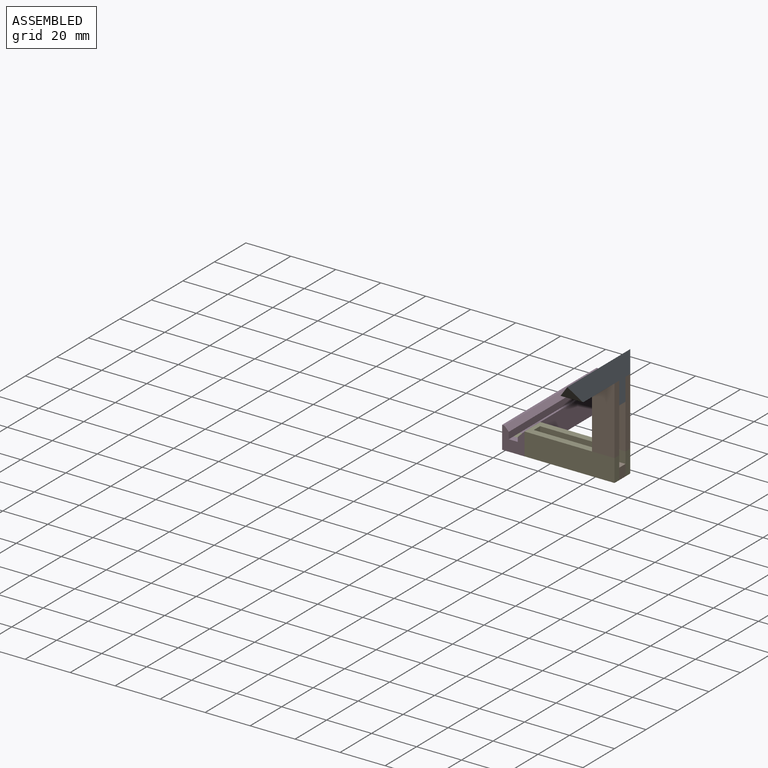
[diagram: assembled view]
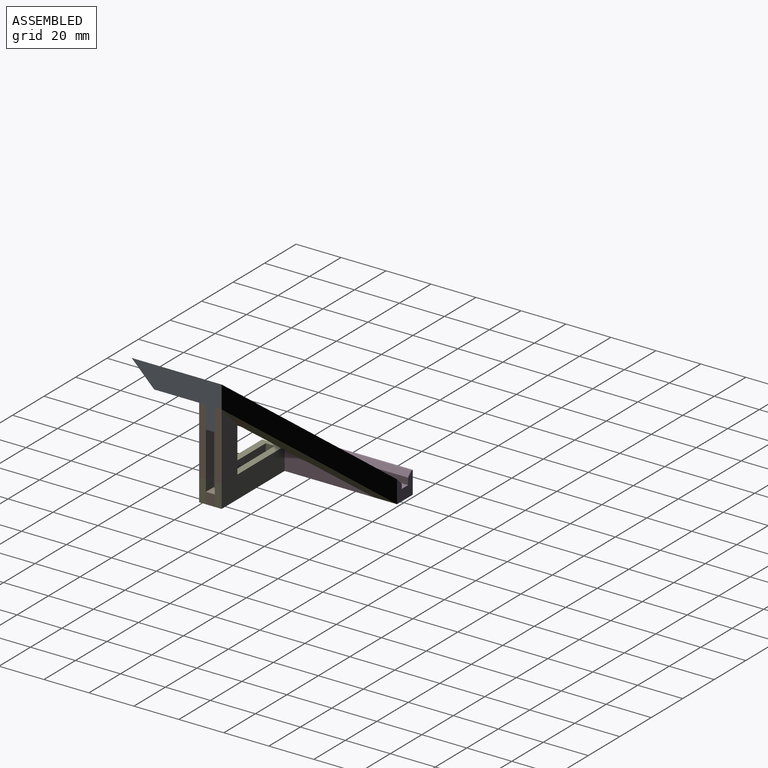
[diagram: assembled view, second angle]
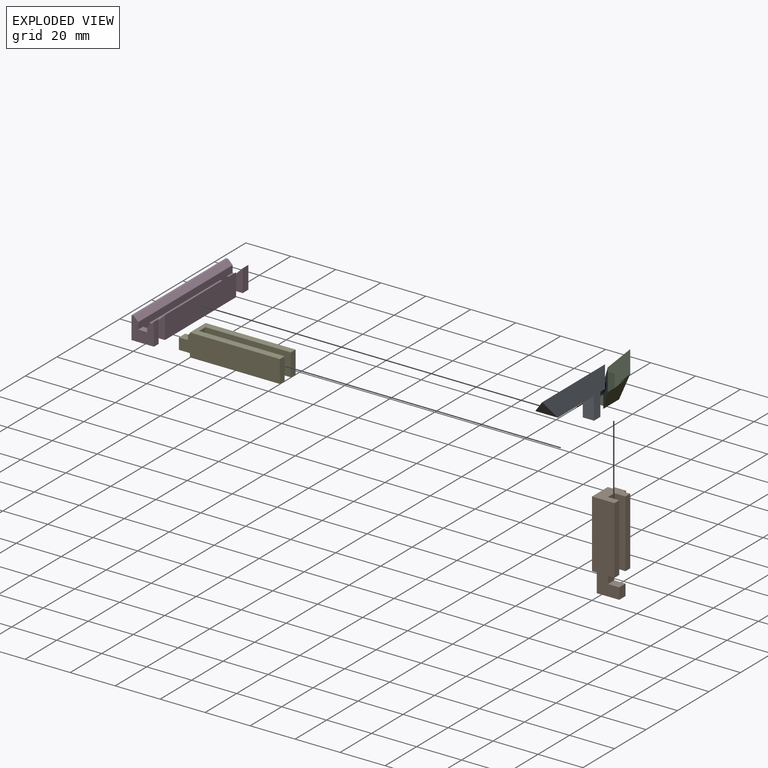
[diagram: exploded view]
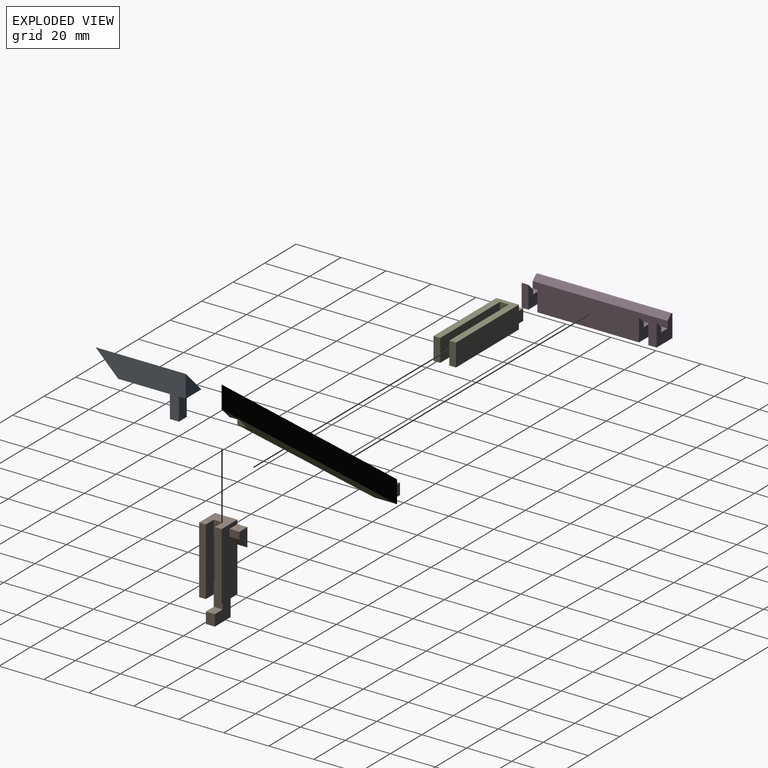
[diagram: exploded view, second angle]
ASSEMBLY  parts=5 mates=5
PART A: 94 faces, bbox 10x40x20 mm
  f0: plane 30x10mm, normal (0,0,-1), area 280mm2, adj f1,f2,f3,f69,f90,f91,f92
  f1: plane 40x10mm, normal (-0.71,0,0.71), area 386.4mm2, adj f0,f2,f3,f4,f5,f7,f8,f9
  f2: plane 40x20mm, normal (1,0,0), area 390mm2, adj f0,f1,f3,f69,f90,f92,f93
  f3: plane 10x10mm, normal (0,-0.71,-0.71), area 70.7mm2, adj f0,f1,f2
  f4: plane 3.02x1.41mm, normal (-0.71,0,-0.71), area 6mm2, adj f1,f6,f7,f71
  f5: plane 3.02x1.41mm, normal (0.71,0,0.71), area 6mm2, adj f1,f6,f11,f72
  f6: plane 5.15x5.15mm, normal (-0.71,0,0.71), area 13.6mm2, adj f4,f5,f7,f8,f9,f10,f11,f70
  f7: plane 2.04x2.04mm, normal (0,1,0), area 1.8mm2, adj f1,f4,f6,f8
  f8: plane 1.52x1.52mm, normal (0.69,0.19,0.69), area 1.6mm2, adj f1,f6,f7,f9
  f9: plane 5.11x5.11mm, normal (0,1,0), area 10.5mm2, adj f1,f6,f8,f10
  f10: plane 1.52x1.52mm, normal (-0.69,0.19,-0.69), area 1.6mm2, adj f1,f6,f9,f11
  f11: plane 2.03x2.03mm, normal (0,1,0), area 1.8mm2, adj f1,f5,f6,f10
  f12: plane 1.52x1.52mm, normal (0.69,-0.19,0.69), area 1.6mm2, adj f1,f13,f23,f24
  f13: plane 2.04x2.04mm, normal (0,-1,0), area 1.8mm2, adj f1,f12,f14,f24
  f14: plane 3.02x1.41mm, normal (-0.71,0,-0.71), area 6mm2, adj f1,f13,f15,f24
  f15: plane 2.04x2.04mm, normal (0,1,0), area 1.8mm2, adj f1,f14,f16,f24
  f16: plane 1.52x1.52mm, normal (0.69,0.19,0.69), area 1.6mm2, adj f1,f15,f17,f24
  f17: plane 5.11x5.11mm, normal (0,1,0), area 10.5mm2, adj f1,f16,f18,f24
  f18: plane 1.52x1.52mm, normal (-0.69,0.19,-0.69), area 1.6mm2, adj f1,f17,f19,f24
  f19: plane 2.03x2.03mm, normal (0,1,0), area 1.8mm2, adj f1,f18,f20,f24
  f20: plane 3.02x1.41mm, normal (0.71,0,0.71), area 6mm2, adj f1,f19,f21,f24
  f21: plane 2.03x2.03mm, normal (0,-1,0), area 1.8mm2, adj f1,f20,f22,f24
  f22: plane 1.52x1.52mm, normal (-0.69,-0.19,-0.69), area 1.6mm2, adj f1,f21,f23,f24
  f23: plane 5.11x5.11mm, normal (0,-1,0), area 10.5mm2, adj f1,f12,f22,f24
  f24: plane 5.15x5.15mm, normal (-0.71,0,0.71), area 13.6mm2, adj f12,f13,f14,f15,f16,f17,f18,f19
  f25: plane 3.28x1.41mm, normal (-0.71,0,-0.71), area 6.6mm2, adj f1,f26,f44,f45
  f26: extruded ~2.2x2.02mm, area 4.9mm2, adj f1,f25,f27,f45
  f27: extruded ~2.96x2.96mm, area 4.8mm2, adj f1,f26,f28,f45
  f28: plane 2.27x2.27mm, normal (0,1,0), area 2.4mm2, adj f1,f27,f29,f45
  f29: extruded ~2.96x2.96mm, area 4.8mm2, adj f1,f28,f30,f45
  f30: extruded ~2.2x2.01mm, area 4.8mm2, adj f1,f29,f31,f45
  f31: plane 3.28x1.41mm, normal (0.71,0,0.71), area 6.6mm2, adj f1,f30,f32,f45
  f32: plane 2.03x2.03mm, normal (0,-1,0), area 1.8mm2, adj f1,f31,f33,f45
  f33: plane 1.52x1.52mm, normal (-0.69,-0.19,-0.69), area 1.6mm2, adj f1,f32,f34,f45
  f34: plane 5.11x5.11mm, normal (0,-1,0), area 10.5mm2, adj f1,f33,f35,f45
  f35: plane 1.52x1.52mm, normal (0.69,-0.19,0.69), area 1.6mm2, adj f1,f34,f44,f45
  f36: plane 1.41x1.41mm, normal (0.71,0,0.71), area 1.9mm2, adj f37,f43,f45,f46
  f37: plane 4.98x4.98mm, normal (0,1,0), area 10.1mm2, adj f36,f38,f45,f46
  f38: plane 1.41x1.41mm, normal (-0.71,0,-0.71), area 1.9mm2, adj f37,f39,f45,f46
  f39: extruded ~1.79x1.79mm, area 2.8mm2, adj f38,f40,f45,f46
  f40: extruded ~2.39x2.39mm, area 3mm2, adj f39,f41,f45,f46
  f41: plane 2.27x2.27mm, normal (0,-1,0), area 2.4mm2, adj f40,f42,f45,f46
  f42: extruded ~2.39x2.39mm, area 3mm2, adj f41,f43,f45,f46
  f43: extruded ~1.79x1.79mm, area 2.8mm2, adj f36,f42,f45,f46
  f44: plane 2.04x2.04mm, normal (0,-1,0), area 1.8mm2, adj f1,f25,f35,f45
  f45: plane 6.35x5.15mm, normal (-0.71,0,0.71), area 26.3mm2, adj f25,f26,f27,f28,f29,f30,f31,f32
  f46: plane 3.56x3.56mm, normal (-0.71,0,0.71), area 12.1mm2, adj f36,f37,f38,f39,f40,f41,f42,f43
  f47: plane 2.03x2.03mm, normal (0,-1,0), area 1.8mm2, adj f1,f48,f66,f67
  f48: plane 1.47x1.47mm, normal (-0.7,-0.14,-0.7), area 1.1mm2, adj f1,f47,f49,f67
  f49: plane 5.9x5.9mm, normal (-0.23,-0.94,-0.23), area 13.4mm2, adj f1,f48,f50,f67
  f50: plane 1.5x1.41mm, normal (-0.71,0,-0.71), area 3mm2, adj f1,f49,f51,f67
  f51: plane 5.9x5.9mm, normal (-0.23,0.94,-0.23), area 13.4mm2, adj f1,f50,f52,f67
  f52: plane 1.47x1.47mm, normal (-0.7,0.14,-0.7), area 1.1mm2, adj f1,f51,f53,f67
  f53: plane 2.03x2.03mm, normal (0,1,0), area 1.8mm2, adj f1,f52,f54,f67
  f54: plane 2.48x1.41mm, normal (0.71,0,0.71), area 5mm2, adj f1,f53,f55,f67
  f55: plane 2.03x2.03mm, normal (0,-1,0), area 1.8mm2, adj f1,f54,f56,f67
  f56: plane 1.48x1.48mm, normal (-0.7,-0.17,-0.7), area 1mm2, adj f1,f55,f57,f67
  f57: plane 2.12x2.12mm, normal (0.22,-0.95,0.22), area 2.1mm2, adj f1,f56,f58,f67
  f58: plane 2.36x1.41mm, normal (0.71,0,0.71), area 4.7mm2, adj f1,f57,f59,f67
  f59: plane 2.12x2.12mm, normal (0.22,0.95,0.22), area 2.1mm2, adj f1,f58,f60,f67
  f60: plane 1.48x1.48mm, normal (-0.7,0.18,-0.7), area 1mm2, adj f1,f59,f61,f67
  f61: plane 2.03x2.03mm, normal (0,1,0), area 1.8mm2, adj f1,f60,f66,f67
  f62: plane 3.23x3.23mm, normal (0.22,0.95,0.22), area 5.4mm2, adj f63,f65,f67,f68
  f63: plane 1.67x1.41mm, normal (-0.71,0,-0.71), area 3.3mm2, adj f62,f64,f67,f68
  f64: plane 3.23x3.23mm, normal (0.22,-0.95,0.22), area 5.4mm2, adj f63,f65,f67,f68
  f65: plane 1.41x1.41mm, normal (0.71,0,0.71), area 0.1mm2, adj f62,f64,f67,f68
  f66: plane 2.48x1.41mm, normal (0.71,0,0.71), area 5mm2, adj f1,f47,f61,f67
  f67: plane 6.96x5.15mm, normal (-0.71,0,0.71), area 23.2mm2, adj f47,f48,f49,f50,f51,f52,f53,f54
  f68: plane 1.82x1.82mm, normal (-0.71,0,0.71), area 2.2mm2, adj f62,f63,f64,f65
  f69: plane 10x10mm, normal (0,1,0), area 50mm2, adj f0,f1,f2
  f70: plane 1.52x1.52mm, normal (0.69,-0.19,0.69), area 1.6mm2, adj f1,f6,f71,f74
  f71: plane 2.04x2.04mm, normal (0,-1,0), area 1.8mm2, adj f1,f4,f6,f70
  f72: plane 2.03x2.03mm, normal (0,-1,0), area 1.8mm2, adj f1,f5,f6,f73
  f73: plane 1.52x1.52mm, normal (-0.69,-0.19,-0.69), area 1.6mm2, adj f1,f6,f72,f74
  f74: plane 5.11x5.11mm, normal (0,-1,0), area 10.5mm2, adj f1,f6,f70,f73
  f75: plane 5.48x1.41mm, normal (0.71,0,0.71), area 11mm2, adj f1,f76,f88,f89
  f76: plane 2.03x2.03mm, normal (0,-1,0), area 1.8mm2, adj f1,f75,f77,f89
  f77: plane 1.52x1.52mm, normal (-0.69,-0.19,-0.69), area 1.6mm2, adj f1,f76,f78,f89
  f78: plane 5.11x5.11mm, normal (0,-1,0), area 10.5mm2, adj f1,f77,f79,f89
  f79: plane 1.52x1.52mm, normal (0.69,-0.19,0.69), area 1.6mm2, adj f1,f78,f80,f89
  f80: plane 2.04x2.04mm, normal (0,-1,0), area 1.8mm2, adj f1,f79,f81,f89
  f81: plane 3.02x1.41mm, normal (-0.71,0,-0.71), area 6mm2, adj f1,f80,f82,f89
  f82: plane 2.04x2.04mm, normal (0,1,0), area 1.8mm2, adj f1,f81,f83,f89
  f83: plane 1.52x1.52mm, normal (0.69,0.19,0.69), area 1.6mm2, adj f1,f82,f84,f89
  f84: plane 5.05x5.05mm, normal (0,1,0), area 10.3mm2, adj f1,f83,f85,f89
  f85: plane 2.06x1.41mm, normal (-0.71,0,-0.71), area 4.1mm2, adj f1,f84,f86,f89
  f86: plane 2.06x2.06mm, normal (-0.05,-1,-0.05), area 1.8mm2, adj f1,f85,f87,f89
  f87: plane 1.41x1.41mm, normal (-0.71,0,-0.71), area 2.2mm2, adj f1,f86,f88,f89
  f88: plane 2.86x2.86mm, normal (0,1,0), area 4.1mm2, adj f1,f75,f87,f89
  f89: plane 5.48x5.15mm, normal (-0.71,0,0.71), area 17.6mm2, adj f75,f76,f77,f78,f79,f80,f81,f82
  f90: plane 10x5mm, normal (0,-1,0), area 50mm2, adj f0,f2,f91,f93
  f91: plane 10x4mm, normal (-1,0,0), area 40mm2, adj f0,f90,f92,f93
  f92: plane 10x5mm, normal (0,1,0), area 50mm2, adj f0,f2,f91,f93
  f93: plane 5x4mm, normal (0,0,-1), area 20mm2, adj f2,f90,f91,f92
PART B: 20 faces, bbox 10x14.5x40 mm
  f0: plane 8.19x5mm, normal (0,1,0), area 28.4mm2, adj f1,f3,f4,f19
  f1: plane 4.46x3.19mm, normal (1,0,0), area 14.2mm2, adj f0,f4,f18,f19
  f2: plane 10x10mm, normal (0,0,1), area 80mm2, adj f3,f12,f13,f14,f15,f16,f17,f18
  f3: plane 40x14.46mm, normal (-1,0,0), area 376.5mm2, adj f0,f2,f4,f6,f7,f8,f9,f11
  f4: plane 5x5mm, normal (0.71,0,-0.71), area 31.6mm2, adj f0,f1,f3,f18
  f5: plane 5x4mm, normal (1,0,0), area 20mm2, adj f6,f9,f10,f11
  f6: plane 10x4mm, normal (0,0,-1), area 40mm2, adj f3,f5,f9,f11
  f7: plane 10x3mm, normal (0,0,-1), area 30mm2, adj f3,f11,f15,f16,f17
  f8: plane 10x3mm, normal (0,0,-1), area 30mm2, adj f3,f9,f13,f14,f18
  f9: plane 10x10mm, normal (0,1,0), area 75mm2, adj f3,f5,f6,f8,f10,f12
  f10: plane 5x4mm, normal (0,0,1), area 20mm2, adj f5,f9,f11,f12
  f11: plane 10x10mm, normal (0,-1,0), area 75mm2, adj f3,f5,f6,f7,f10,f12
  f12: plane 35x4mm, normal (1,0,0), area 140mm2, adj f2,f9,f10,f11,f13,f17
  f13: plane 30x5mm, normal (0,-1,0), area 150mm2, adj f2,f8,f12,f14
  f14: plane 30x3mm, normal (1,0,0), area 90mm2, adj f2,f8,f13,f18
  f15: plane 30x10mm, normal (0,-1,0), area 300mm2, adj f2,f3,f7,f16
  f16: plane 30x3mm, normal (1,0,0), area 90mm2, adj f2,f7,f15,f17
  f17: plane 30x5mm, normal (0,1,0), area 150mm2, adj f2,f7,f12,f16
  f18: plane 30x10mm, normal (0,1,0), area 271.6mm2, adj f1,f2,f3,f4,f8,f14,f19
  f19: plane 5x4.46mm, normal (0,0,1), area 22.3mm2, adj f0,f1,f3,f18
PART C: 23 faces, bbox 47x50x50 mm
  f0: plane 50x40mm, normal (0.71,0,-0.71), area 534.1mm2, adj f7,f8,f10,f11,f12,f13,f19,f21
  f1: plane 5x4.17mm, normal (-1,0,0), area 20.8mm2, adj f2,f3,f5,f7
  f2: plane 10x7mm, normal (0,-1,0), area 45.5mm2, adj f1,f4,f5,f6,f7,f11
  f3: plane 10x7mm, normal (0,1,0), area 45.5mm2, adj f1,f4,f5,f6,f7,f8
  f4: plane 4.17x3mm, normal (-0.71,0,0.71), area 17.7mm2, adj f2,f3,f6,f16
  f5: plane 4.17x4mm, normal (0,0,1), area 16.7mm2, adj f1,f2,f3,f6
  f6: plane 4.17x2mm, normal (-1,0,0), area 8.3mm2, adj f2,f3,f4,f5
  f7: plane 7x4.17mm, normal (0,0,-1), area 29.2mm2, adj f0,f1,f2,f3
  f8: plane 10x3.62mm, normal (-1,0,0), area 36.2mm2, adj f0,f3,f9,f12
  f9: plane 50x40mm, normal (-0.71,0,0.71), area 391.1mm2, adj f8,f10,f11,f12,f13,f15,f17,f18
  f10: plane 40x40mm, normal (-0.8,-0.6,0), area 500mm2, adj f0,f9,f11,f13,f22
  f11: plane 10x2.21mm, normal (-1,0,0), area 22.1mm2, adj f0,f2,f9,f10
  f12: plane 50x50mm, normal (0.78,0.62,0), area 640.3mm2, adj f0,f8,f9,f13
  f13: plane 15x10mm, normal (0,-1,0), area 71.6mm2, adj f0,f9,f10,f12,f20,f21
  f14: plane 37.37x30mm, normal (-0.71,0,0.71), area 174.6mm2, adj f15,f16,f17,f18
  f15: plane 37.08x32.06mm, normal (-0.47,-0.75,-0.47), area 164.5mm2, adj f9,f14,f16,f18
  f16: plane 4.17x2.07mm, normal (0.71,0,0.71), area 12.2mm2, adj f4,f14,f15,f17
  f17: plane 33.2x28.62mm, normal (0.47,0.75,0.47), area 146.4mm2, adj f9,f14,f16,f18
  f18: plane 5.51x5.51mm, normal (-0.04,1,-0.04), area 14.2mm2, adj f9,f14,f15,f17
  f19: plane 8.19x5mm, normal (0,-1,0), area 28.4mm2, adj f0,f20,f21,f22
  f20: plane 5x4.46mm, normal (0,0,-1), area 22.3mm2, adj f13,f19,f21,f22
  f21: plane 4.46x3.19mm, normal (-1,0,0), area 14.2mm2, adj f0,f13,f19,f20
  f22: plane 8.19x4.46mm, normal (1,0,0), area 36.5mm2, adj f0,f10,f19,f20
PART D: 23 faces, bbox 10x60x10 mm
  f0: plane 45.21x10mm, normal (1,0,0), area 452.1mm2, adj f2,f5,f19,f22
  f1: plane 3.62x3mm, normal (-0.71,0,0.71), area 15.4mm2, adj f4,f6,f16,f21
  f2: plane 60x10mm, normal (0,0,-1), area 542.8mm2, adj f0,f6,f11,f15,f16,f17,f18,f19
  f3: plane 4x3.62mm, normal (0,0,1), area 14.5mm2, adj f4,f11,f16,f21
  f4: plane 3.62x2mm, normal (-1,0,0), area 7.2mm2, adj f1,f3,f16,f21
  f5: plane 45.21x3mm, normal (-0.71,0,0.71), area 191.8mm2, adj f0,f13,f19,f22
  f6: plane 10x3.62mm, normal (1,0,0), area 36.2mm2, adj f1,f2,f16,f21
  f7: plane 4x3mm, normal (0,0,1), area 12mm2, adj f8,f11,f18,f20
  f8: plane 3x2mm, normal (-1,0,0), area 6mm2, adj f7,f14,f18,f20
  f9: plane 60x1mm, normal (0,0,1), area 60mm2, adj f10,f16,f17,f18
  f10: plane 60x2mm, normal (0.71,0,0.71), area 169.7mm2, adj f9,f11,f16,f18
  f11: plane 60x8mm, normal (1,0,0), area 220.8mm2, adj f2,f3,f7,f10,f12,f16,f18,f19
  f12: plane 45.21x4mm, normal (0,0,1), area 180.8mm2, adj f11,f13,f19,f22
  f13: plane 45.21x2mm, normal (-1,0,0), area 90.4mm2, adj f5,f12,f19,f22
  f14: plane 3x3mm, normal (-0.71,0,0.71), area 12.7mm2, adj f8,f15,f18,f20
  f15: plane 10x3mm, normal (1,0,0), area 30mm2, adj f2,f14,f18,f20
  f16: plane 10x10mm, normal (0,1,0), area 73.5mm2, adj f1,f2,f3,f4,f6,f9,f10,f11
  f17: plane 60x10mm, normal (-1,0,0), area 600mm2, adj f2,f9,f16,f18
  f18: plane 10x10mm, normal (0,-1,0), area 73.5mm2, adj f2,f7,f8,f9,f10,f11,f14,f15
  f19: plane 10x7mm, normal (0,-1,0), area 45.5mm2, adj f0,f2,f5,f11,f12,f13
  f20: plane 10x7mm, normal (0,1,0), area 45.5mm2, adj f2,f7,f8,f11,f14,f15
  f21: plane 10x7mm, normal (0,-1,0), area 45.5mm2, adj f1,f2,f3,f4,f6,f11
  f22: plane 10x7mm, normal (0,1,0), area 45.5mm2, adj f0,f2,f5,f11,f12,f13
PART E: 19 faces, bbox 47x10x10 mm
  f0: plane 4x4mm, normal (0,0,1), area 16mm2, adj f1,f4,f5,f6
  f1: plane 4x2mm, normal (-1,0,0), area 8mm2, adj f0,f2,f4,f5
  f2: plane 4x3mm, normal (-0.71,0,0.71), area 17mm2, adj f1,f4,f5,f14
  f3: plane 47x10mm, normal (0,0,-1), area 388mm2, adj f4,f5,f6,f7,f8,f10,f11,f12
  f4: plane 10x7mm, normal (0,1,0), area 45.5mm2, adj f0,f1,f2,f3,f6,f7
  f5: plane 10x7mm, normal (0,-1,0), area 45.5mm2, adj f0,f1,f2,f3,f6,f11
  f6: plane 5x4mm, normal (-1,0,0), area 20mm2, adj f0,f3,f4,f5
  f7: plane 10x3mm, normal (-1,0,0), area 30mm2, adj f3,f4,f12,f14
  f8: plane 38x10mm, normal (0,-1,0), area 240mm2, adj f3,f9,f10,f14,f17,f18
  f9: plane 28x4mm, normal (0,0,1), area 112mm2, adj f8,f10,f15,f18
  f10: plane 5x4mm, normal (1,0,0), area 20mm2, adj f3,f8,f9,f15
  f11: plane 10x3mm, normal (-1,0,0), area 30mm2, adj f3,f5,f13,f14
  f12: plane 40x10mm, normal (0,1,0), area 400mm2, adj f3,f7,f14,f17
  f13: plane 40x10mm, normal (0,-1,0), area 400mm2, adj f3,f11,f14,f16
  f14: plane 40x10mm, normal (0,0,1), area 248mm2, adj f2,f7,f8,f11,f12,f13,f15,f16
  f15: plane 38x10mm, normal (0,1,0), area 240mm2, adj f3,f9,f10,f14,f16,f18
  f16: plane 10x3mm, normal (1,0,0), area 30mm2, adj f3,f13,f14,f15
  f17: plane 10x3mm, normal (1,0,0), area 30mm2, adj f3,f8,f12,f14
  f18: plane 5x4mm, normal (1,0,0), area 20mm2, adj f8,f9,f14,f15
PLACE A t=(0,-10,30)mm
PLACE B t=(0,-10,30)mm
PLACE C t=(0,-10,30)mm
PLACE D t=(0,-10,30)mm
PLACE E t=(0,-10,30)mm
MATE slider E.f6 <-> D.f11  axis (-1,0,0) through (3,3,0)mm
MATE slider A.f0 <-> B.f2  axis (0,0,-1) through (50,8.5,40)mm
MATE slider B.f3 <-> E.f10  axis (-1,0,0) through (40,5,0)mm
MATE planar C.f1 <-> D.f11  axis (-1,0,0) through (3,54.3,0)mm
MATE slider B.f4 <-> C.f0  axis (0.71,0,-0.71) through (42.5,14.46,32.5)mm
